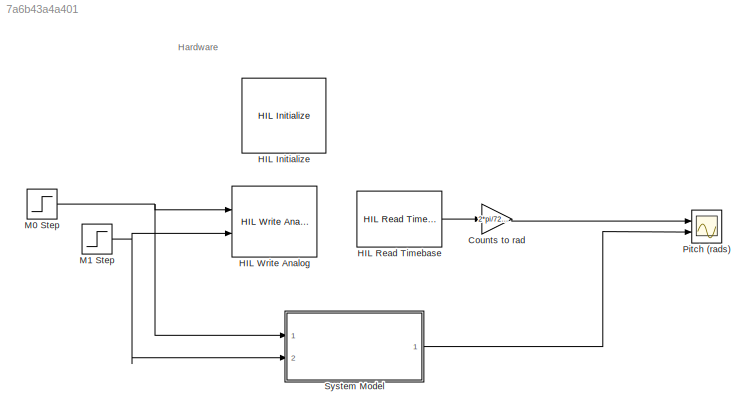
MODEL slx_7a6b43a4a401
KIND model
CONFIG AbsTol = auto
CONFIG EnableMultiTasking = on
CONFIG FixedStep = 0.002
CONFIG MaxStep = auto
CONFIG MinStep = auto
CONFIG RelTol = 1e-3
CONFIG SampleTimeConstraint = Unconstrained
CONFIG SolverName = ode1
CONFIG StartTime = 0.0
CONFIG StopTime = 15
BLOCK [Gain] Counts to rad
  Gain = 2*pi/720/4
BLOCK [Reference] HIL Initialize  REF=quarc_library/Data Acquisition/Generic/Configuration/HIL Initialize
  AttributesFormatString = %<object_name> (%<board_type>-%<board_number>)
  Ports = []
  Priority = -99
  SourceBlock = quarc_library/Data Acquisition/Generic/Configuration/HIL Initialize
  SourceProductName = QUARC Targets
  SourceType = HIL Initialize
  UserDataPersistent = on
BLOCK [Reference] HIL Read Timebase  REF=quarc_library/Data Acquisition/Generic/Timebases/HIL Read
Timebase
  AttributesFormatString = (%<object_name>)
  Ports = [0, 1]
  SourceBlock = quarc_library/Data Acquisition/Generic/Timebases/HIL Read\nTimebase
  SourceProductName = QUARC Targets
  SourceType = HIL Read Timebase
  UserDataPersistent = on
BLOCK [Reference] HIL Write Analog  REF=quarc_library/Data Acquisition/Generic/Immediate I//O/HIL Write Analog
  AttributesFormatString = (%<object_name>)
  Ports = [2]
  SourceBlock = quarc_library/Data Acquisition/Generic/Immediate I//O/HIL Write Analog
  SourceProductName = QUARC Targets
  SourceType = HIL Write Analog
  UserDataPersistent = on
BLOCK [Step] M0 Step
  After = 5
  SampleTime = 0
BLOCK [Step] M1 Step
  After = 5
  SampleTime = 0
  Time = 5
BLOCK [Scope] Pitch (rads)
  Floating = off
  NumInputPorts = 2
  Ports = [2]
  ScopeSpecificationString = Simulink.scopes.TimeScopeBlockCfg('CurrentConfiguration', extmgr.ConfigurationSet(extmgr.Configuration('Core','General UI',true),extmgr.Configuration('Core','Source UI',true),extmgr.Configuration('Sources','WiredSimulink',true,'DataLoggingVariableName','ScopeData1'),extmgr.Configuration('Visuals','Time Domain',true,'SerializedDisplays',{struct('MinYLimReal','-0.3521','MaxYLimReal','0.74453','YLabe...<+1453ch>
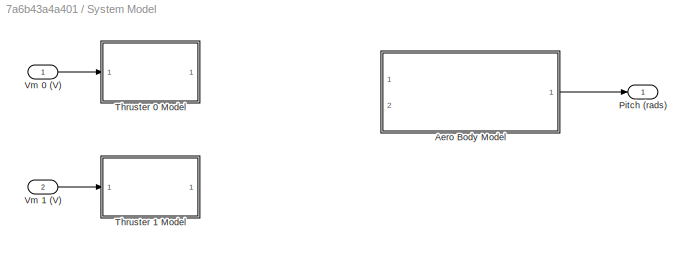
BLOCK [SubSystem] System Model
  Ports = [2, 1]
  RequestExecContextInheritance = off
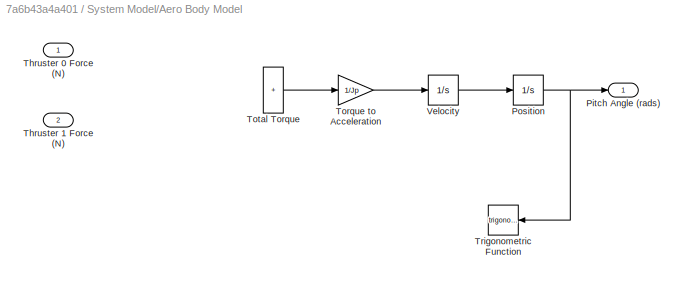
BLOCK [SubSystem] System Model/Aero Body Model
  Ports = [2, 1]
  RequestExecContextInheritance = off
BLOCK [Outport] System Model/Aero Body Model/Pitch Angle (rads)
BLOCK [Integrator] System Model/Aero Body Model/Position
  Ports = [1, 1]
BLOCK [Inport] System Model/Aero Body Model/Thruster 0 Force (N)
BLOCK [Inport] System Model/Aero Body Model/Thruster 1 Force (N)
  Port = 2
BLOCK [Gain] System Model/Aero Body Model/Torque to Acceleration
  Gain = 1/Jp
BLOCK [Sum] System Model/Aero Body Model/Total Torque
  IconShape = rectangular
  Inputs = ++++
  Ports = [4, 1]
BLOCK [Trigonometry] System Model/Aero Body Model/Trigonometric Function
  Ports = [1, 1]
BLOCK [Integrator] System Model/Aero Body Model/Velocity
  Ports = [1, 1]
BLOCK [Outport] System Model/Pitch (rads)
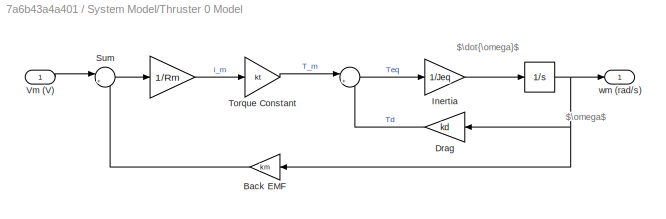
BLOCK [SubSystem] System Model/Thruster 0 Model
  Ports = [1, 1]
  RequestExecContextInheritance = off
BLOCK [Integrator] System Model/Thruster 0 Model/ 
  Ports = [1, 1]
BLOCK [Gain] System Model/Thruster 0 Model/  
  Gain = 1/Rm
  NameLocation = right
  OutDataTypeStr = Inherit: Same as input
  ParamDataTypeStr = Inherit: Same as input
  SaturateOnIntegerOverflow = on
BLOCK [Sum] System Model/Thruster 0 Model/   
  Inputs = |+-
  Ports = [2, 1]
BLOCK [Gain] System Model/Thruster 0 Model/Back EMF
  Gain = km
BLOCK [Gain] System Model/Thruster 0 Model/Drag
  Gain = kd
BLOCK [Gain] System Model/Thruster 0 Model/Inertia
  Gain = 1/Jeq
BLOCK [Sum] System Model/Thruster 0 Model/Sum
  InputSameDT = on
  Inputs = |+-
  OutDataTypeStr = Inherit: Same as first input
  Ports = [2, 1]
  SaturateOnIntegerOverflow = on
BLOCK [Gain] System Model/Thruster 0 Model/Torque Constant
  Gain = kt
BLOCK [Inport] System Model/Thruster 0 Model/Vm (V)
BLOCK [Outport] System Model/Thruster 0 Model/wm (rad//s)
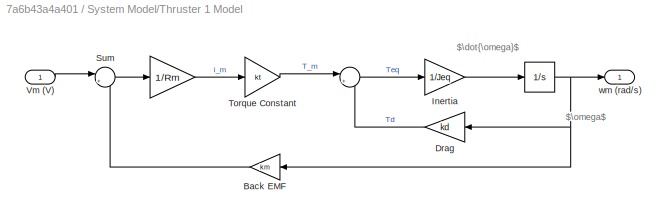
BLOCK [SubSystem] System Model/Thruster 1 Model
  Ports = [1, 1]
  RequestExecContextInheritance = off
BLOCK [Integrator] System Model/Thruster 1 Model/ 
  Ports = [1, 1]
BLOCK [Gain] System Model/Thruster 1 Model/  
  Gain = 1/Rm
  NameLocation = right
  OutDataTypeStr = Inherit: Same as input
  ParamDataTypeStr = Inherit: Same as input
  SaturateOnIntegerOverflow = on
BLOCK [Sum] System Model/Thruster 1 Model/   
  Inputs = |+-
  Ports = [2, 1]
BLOCK [Gain] System Model/Thruster 1 Model/Back EMF
  Gain = km
BLOCK [Gain] System Model/Thruster 1 Model/Drag
  Gain = kd
BLOCK [Gain] System Model/Thruster 1 Model/Inertia
  Gain = 1/Jeq
BLOCK [Sum] System Model/Thruster 1 Model/Sum
  InputSameDT = on
  Inputs = |+-
  OutDataTypeStr = Inherit: Same as first input
  Ports = [2, 1]
  SaturateOnIntegerOverflow = on
BLOCK [Gain] System Model/Thruster 1 Model/Torque Constant
  Gain = kt
BLOCK [Inport] System Model/Thruster 1 Model/Vm (V)
BLOCK [Outport] System Model/Thruster 1 Model/wm (rad//s)
BLOCK [Inport] System Model/Vm 0 (V)
BLOCK [Inport] System Model/Vm 1 (V)
  Port = 2
ANNOTATION (root): Hardware
ANNOTATION System Model/Thruster 0 Model: $\dot{\omega}$
ANNOTATION System Model/Thruster 0 Model: $\omega$
ANNOTATION System Model/Thruster 1 Model: $\dot{\omega}$
ANNOTATION System Model/Thruster 1 Model: $\omega$
LINE Counts to rad:1 -> Pitch (rads):1
LINE HIL Read Timebase:1 -> Counts to rad:1
NET M0 Step:1 -> HIL Write Analog:1, System Model:1
NET M1 Step:1 -> HIL Write Analog:2, System Model:2
NET System Model/Aero Body Model/Position:1 -> System Model/Aero Body Model/Pitch Angle (rads):1, System Model/Aero Body Model/Trigonometric Function:1
LINE System Model/Aero Body Model/Torque to Acceleration:1 -> System Model/Aero Body Model/Velocity:1
LINE System Model/Aero Body Model/Total Torque:1 -> System Model/Aero Body Model/Torque to Acceleration:1
LINE System Model/Aero Body Model/Velocity:1 -> System Model/Aero Body Model/Position:1
LINE System Model/Aero Body Model:1 -> System Model/Pitch (rads):1
LINE System Model/Thruster 0 Model/   :1 -> System Model/Thruster 0 Model/Inertia:1
LINE System Model/Thruster 0 Model/  :1 -> System Model/Thruster 0 Model/Torque Constant:1
NET System Model/Thruster 0 Model/ :1 -> System Model/Thruster 0 Model/Back EMF:1, System Model/Thruster 0 Model/Drag:1, System Model/Thruster 0 Model/wm (rad//s):1
LINE System Model/Thruster 0 Model/Back EMF:1 -> System Model/Thruster 0 Model/Sum:2
LINE System Model/Thruster 0 Model/Drag:1 -> System Model/Thruster 0 Model/   :2
LINE System Model/Thruster 0 Model/Inertia:1 -> System Model/Thruster 0 Model/ :1
LINE System Model/Thruster 0 Model/Sum:1 -> System Model/Thruster 0 Model/  :1
LINE System Model/Thruster 0 Model/Torque Constant:1 -> System Model/Thruster 0 Model/   :1
LINE System Model/Thruster 0 Model/Vm (V):1 -> System Model/Thruster 0 Model/Sum:1
LINE System Model/Thruster 1 Model/   :1 -> System Model/Thruster 1 Model/Inertia:1
LINE System Model/Thruster 1 Model/  :1 -> System Model/Thruster 1 Model/Torque Constant:1
NET System Model/Thruster 1 Model/ :1 -> System Model/Thruster 1 Model/Back EMF:1, System Model/Thruster 1 Model/Drag:1, System Model/Thruster 1 Model/wm (rad//s):1
LINE System Model/Thruster 1 Model/Back EMF:1 -> System Model/Thruster 1 Model/Sum:2
LINE System Model/Thruster 1 Model/Drag:1 -> System Model/Thruster 1 Model/   :2
LINE System Model/Thruster 1 Model/Inertia:1 -> System Model/Thruster 1 Model/ :1
LINE System Model/Thruster 1 Model/Sum:1 -> System Model/Thruster 1 Model/  :1
LINE System Model/Thruster 1 Model/Torque Constant:1 -> System Model/Thruster 1 Model/   :1
LINE System Model/Thruster 1 Model/Vm (V):1 -> System Model/Thruster 1 Model/Sum:1
LINE System Model/Vm 0 (V):1 -> System Model/Thruster 0 Model:1
LINE System Model/Vm 1 (V):1 -> System Model/Thruster 1 Model:1
LINE System Model:1 -> Pitch (rads):2
note: NET lines group one-source signal fan-out (src -> all destinations, sorted); 1:1 wires keep LINE
